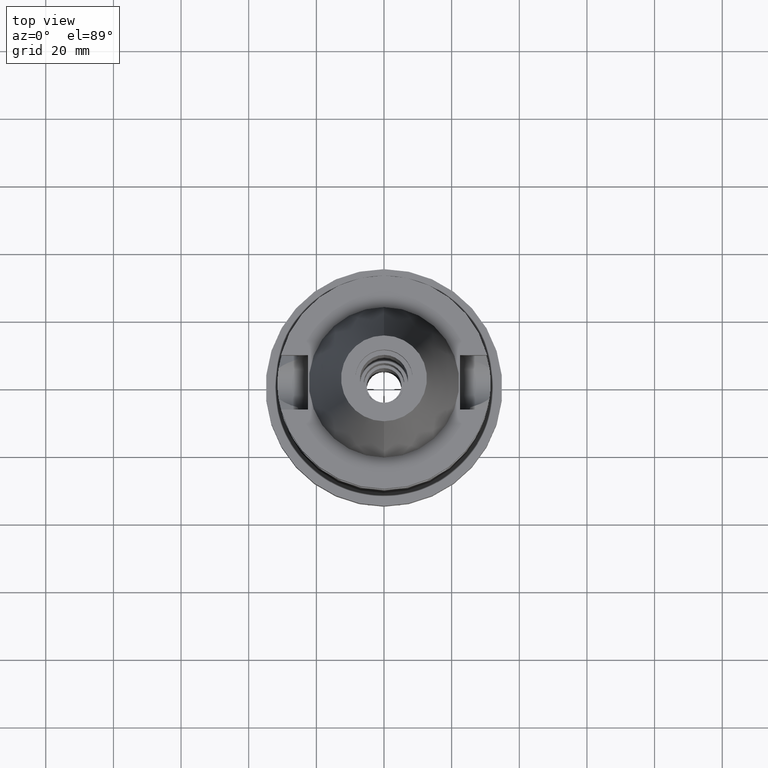
[diagram: clean part render]
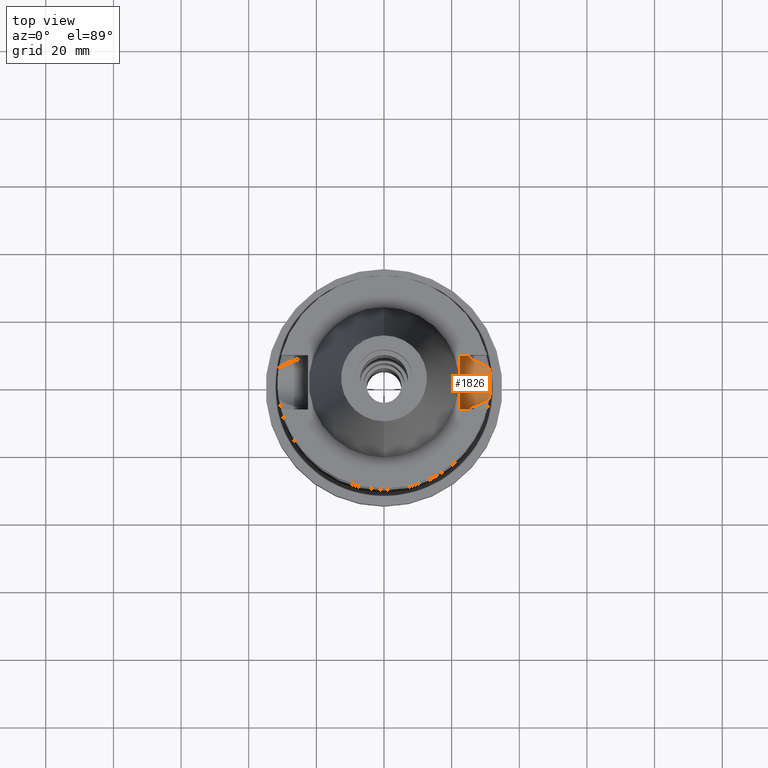
[diagram: same view with one face highlighted and labeled with its STEP entity id]
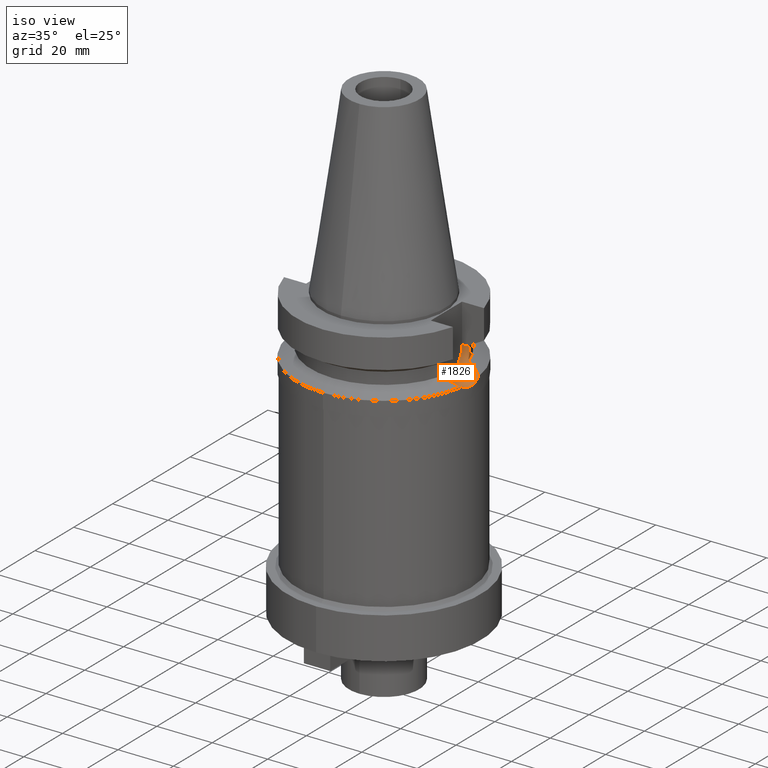
[diagram: same view with one face highlighted and labeled with its STEP entity id]
A machine part, top view. The second image highlights one B-rep face of the part: STEP entity #1826.
A second angle (iso view) of the same face is appended — the face is thin or edge-on in the first view.
In plain terms, the highlighted cylindrical surface (edge-blend (fillet) strip) has radius 8.05 mm, axis along (1, 0, 0).
Its self-contained STEP definition (entity closure, byte-faithful):
#231=CARTESIAN_POINT('',(2.524772266958E1,-8.05E0,-1.495E1));
#232=CARTESIAN_POINT('',(2.524772266958E1,-8.05E0,-1.538864174474E1));
#233=CARTESIAN_POINT('',(2.527037475266E1,-7.979496119012E0,-1.625509294626E1));
#234=CARTESIAN_POINT('',(2.536990419029E1,-7.660286145761E0,-1.753941771209E1));
#235=CARTESIAN_POINT('',(2.547275443880E1,-7.310082026910E0,-1.835111085735E1));
#236=CARTESIAN_POINT('',(2.553175183775E1,-7.097862220093E0,-1.874774300139E1));
#314=CARTESIAN_POINT('',(2.25E1,0.E0,-1.495E1));
#315=DIRECTION('',(-1.E0,0.E0,0.E0));
#316=DIRECTION('',(0.E0,1.E0,0.E0));
#317=AXIS2_PLACEMENT_3D('',#314,#315,#316);
#322=CARTESIAN_POINT('',(2.25E1,0.E0,-1.495E1));
#323=DIRECTION('',(-1.E0,0.E0,0.E0));
#324=DIRECTION('',(0.E0,0.E0,-1.E0));
#325=AXIS2_PLACEMENT_3D('',#322,#323,#324);
#371=CARTESIAN_POINT('',(2.553175183775E1,7.097862220093E0,-1.874774300139E1));
#372=CARTESIAN_POINT('',(2.547274728026E1,7.310107776911E0,-1.835106273140E1));
#373=CARTESIAN_POINT('',(2.536989077647E1,7.660330327251E0,-1.753929703371E1));
#374=CARTESIAN_POINT('',(2.527036887392E1,7.979514401493E0,-1.625496268834E1));
#375=CARTESIAN_POINT('',(2.524772266958E1,8.05E0,-1.538858569135E1));
#376=CARTESIAN_POINT('',(2.524772266958E1,8.05E0,-1.495E1));
#484=CARTESIAN_POINT('',(2.553175183775E1,-7.097862220093E0,-1.874774300139E1));
#485=CARTESIAN_POINT('',(2.603988909897E1,-6.958183994268E0,-1.900879721219E1));
#486=CARTESIAN_POINT('',(2.700137087846E1,-6.657212120683E0,-1.950189841591E1));
#487=CARTESIAN_POINT('',(2.827274126747E1,-6.160398069608E0,-2.015232459739E1));
#488=CARTESIAN_POINT('',(2.939026329554E1,-5.627523226698E0,-2.072296976554E1));
#489=CARTESIAN_POINT('',(3.036164753105E1,-5.068589702375E0,-2.121826782255E1));
#490=CARTESIAN_POINT('',(3.092145665557E1,-4.680925367375E0,-2.150338120918E1));
#491=CARTESIAN_POINT('',(3.117899877609E1,-4.485536235554E0,-2.163449434733E1));
#512=DIRECTION('',(-1.E0,-1.551559937893E-14,0.E0));
#513=VECTOR('',#512,2.747722669580E0);
#514=CARTESIAN_POINT('',(2.524772266958E1,-8.05E0,-1.495E1));
#515=LINE('',#514,#513);
#519=DIRECTION('',(1.E0,-1.551559937893E-14,0.E0));
#520=VECTOR('',#519,2.747722669580E0);
#521=CARTESIAN_POINT('',(2.25E1,8.05E0,-1.495E1));
#522=LINE('',#521,#520);
#526=CARTESIAN_POINT('',(3.117899877609E1,-4.485536235554E0,-2.163449434733E1));
#527=CARTESIAN_POINT('',(3.124367094671E1,-4.035999452745E0,-2.193614970430E1));
#528=CARTESIAN_POINT('',(3.135871088703E1,-3.100656116110E0,-2.243541034671E1));
#529=CARTESIAN_POINT('',(3.147359468493E1,-1.571407466414E0,-2.289766634016E1));
#530=CARTESIAN_POINT('',(3.15E1,-5.303523347518E-1,-2.3E1));
#531=CARTESIAN_POINT('',(3.15E1,0.E0,-2.3E1));
#536=CARTESIAN_POINT('',(3.15E1,0.E0,-2.3E1));
#537=CARTESIAN_POINT('',(3.15E1,5.303306473167E-1,-2.3E1));
#538=CARTESIAN_POINT('',(3.147359709017E1,1.571357245403E0,-2.289767510010E1));
#539=CARTESIAN_POINT('',(3.135871433605E1,3.100626004467E0,-2.243542509817E1));
#540=CARTESIAN_POINT('',(3.124367264891E1,4.035987620711E0,-2.193615764402E1));
#541=CARTESIAN_POINT('',(3.117899877609E1,4.485536235554E0,-2.163449434733E1));
#581=CARTESIAN_POINT('',(3.117899877609E1,4.485536235554E0,-2.163449434733E1));
#582=CARTESIAN_POINT('',(3.065540671920E1,4.882769112328E0,-2.136793679337E1));
#583=CARTESIAN_POINT('',(2.952308243845E1,5.594536108344E0,-2.079101423591E1));
#584=CARTESIAN_POINT('',(2.755680576982E1,6.477444853043E0,-1.978656962835E1));
#585=CARTESIAN_POINT('',(2.621632183515E1,6.909685658388E0,-1.909943907654E1));
#586=CARTESIAN_POINT('',(2.553175183775E1,7.097862220093E0,-1.874774300139E1));
#1352=VERTEX_POINT('',#536);
#1353=VERTEX_POINT('',#541);
#1354=VERTEX_POINT('',#526);
#1359=VERTEX_POINT('',#484);
#1360=VERTEX_POINT('',#231);
#1361=CARTESIAN_POINT('',(2.25E1,-8.05E0,-1.495E1));
#1362=VERTEX_POINT('',#1361);
#1363=CARTESIAN_POINT('',(2.25E1,0.E0,-2.3E1));
#1364=VERTEX_POINT('',#1363);
#1365=CARTESIAN_POINT('',(2.25E1,8.05E0,-1.495E1));
#1366=VERTEX_POINT('',#1365);
#1367=CARTESIAN_POINT('',(2.524772266958E1,8.05E0,-1.495E1));
#1368=VERTEX_POINT('',#1367);
#1369=VERTEX_POINT('',#371);
#1806=CARTESIAN_POINT('',(2.25E1,0.E0,-1.495E1));
#1807=DIRECTION('',(1.E0,0.E0,0.E0));
#1808=DIRECTION('',(0.E0,0.E0,-1.E0));
#1809=AXIS2_PLACEMENT_3D('',#1806,#1807,#1808);
#1810=CYLINDRICAL_SURFACE('',#1809,8.05E0);
#1812=ORIENTED_EDGE('',*,*,#1811,.F.);
#1814=ORIENTED_EDGE('',*,*,#1813,.F.);
#1815=ORIENTED_EDGE('',*,*,#1797,.F.);
#1816=ORIENTED_EDGE('',*,*,#1606,.F.);
#1817=ORIENTED_EDGE('',*,*,#1660,.T.);
#1818=ORIENTED_EDGE('',*,*,#1675,.F.);
#1819=ORIENTED_EDGE('',*,*,#1673,.F.);
#1820=ORIENTED_EDGE('',*,*,#1688,.T.);
#1821=ORIENTED_EDGE('',*,*,#1712,.F.);
#1823=ORIENTED_EDGE('',*,*,#1822,.F.);
#1824=EDGE_LOOP('',(#1812,#1814,#1815,#1816,#1817,#1818,#1819,#1820,#1821,
#1823));
#1825=FACE_OUTER_BOUND('',#1824,.F.);
#237=B_SPLINE_CURVE_WITH_KNOTS('',3,(#231,#232,#233,#234,#235,#236),
.UNSPECIFIED.,.F.,.F.,(4,1,1,4),(0.E0,3.333333333333E-1,6.666666666667E-1,1.E0),
.UNSPECIFIED.);
#318=CIRCLE('',#317,8.05E0);
#326=CIRCLE('',#325,8.05E0);
#377=B_SPLINE_CURVE_WITH_KNOTS('',3,(#371,#372,#373,#374,#375,#376),
.UNSPECIFIED.,.F.,.F.,(4,1,1,4),(0.E0,3.333333333333E-1,6.666666666667E-1,1.E0),
.UNSPECIFIED.);
#492=B_SPLINE_CURVE_WITH_KNOTS('',3,(#484,#485,#486,#487,#488,#489,#490,#491),
.UNSPECIFIED.,.F.,.F.,(4,1,1,1,1,4),(0.E0,2.E-1,4.E-1,6.E-1,8.E-1,1.E0),
.UNSPECIFIED.);
#532=B_SPLINE_CURVE_WITH_KNOTS('',3,(#526,#527,#528,#529,#530,#531),
.UNSPECIFIED.,.F.,.F.,(4,1,1,4),(0.E0,3.333333333333E-1,6.666666666667E-1,1.E0),
.UNSPECIFIED.);
#542=B_SPLINE_CURVE_WITH_KNOTS('',3,(#536,#537,#538,#539,#540,#541),
.UNSPECIFIED.,.F.,.F.,(4,1,1,4),(0.E0,3.333333333333E-1,6.666666666667E-1,1.E0),
.UNSPECIFIED.);
#587=B_SPLINE_CURVE_WITH_KNOTS('',3,(#581,#582,#583,#584,#585,#586),
.UNSPECIFIED.,.F.,.F.,(4,1,1,4),(0.E0,3.333333333333E-1,6.666666666667E-1,1.E0),
.UNSPECIFIED.);
#1606=EDGE_CURVE('',#1360,#1359,#237,.T.);
#1660=EDGE_CURVE('',#1360,#1362,#515,.T.);
#1673=EDGE_CURVE('',#1366,#1364,#318,.T.);
#1675=EDGE_CURVE('',#1364,#1362,#326,.T.);
#1688=EDGE_CURVE('',#1366,#1368,#522,.T.);
#1712=EDGE_CURVE('',#1369,#1368,#377,.T.);
#1797=EDGE_CURVE('',#1359,#1354,#492,.T.);
#1811=EDGE_CURVE('',#1352,#1353,#542,.T.);
#1813=EDGE_CURVE('',#1354,#1352,#532,.T.);
#1822=EDGE_CURVE('',#1353,#1369,#587,.T.);
#1826=ADVANCED_FACE('',(#1825),#1810,.F.);